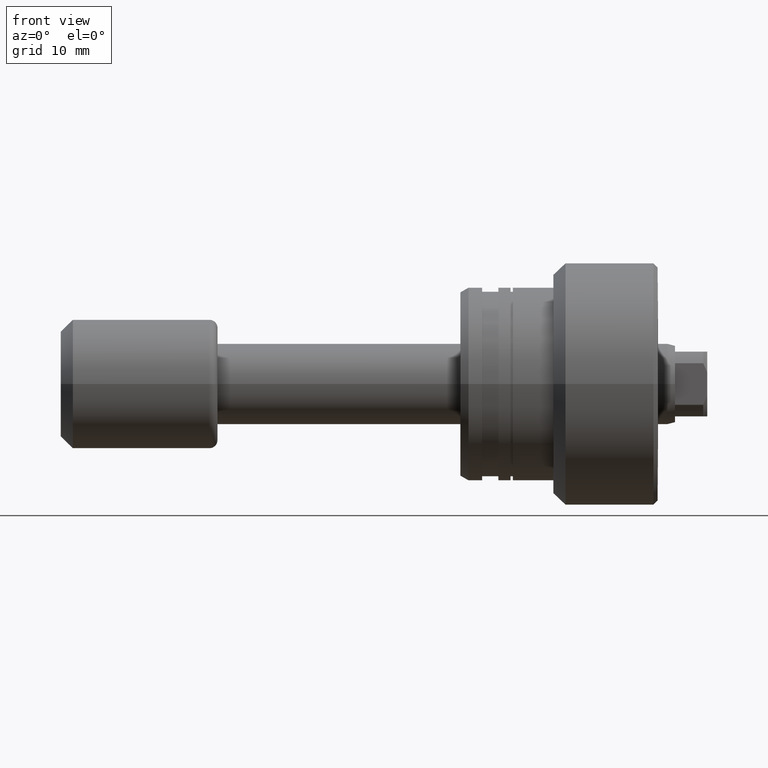
[diagram: clean part render]
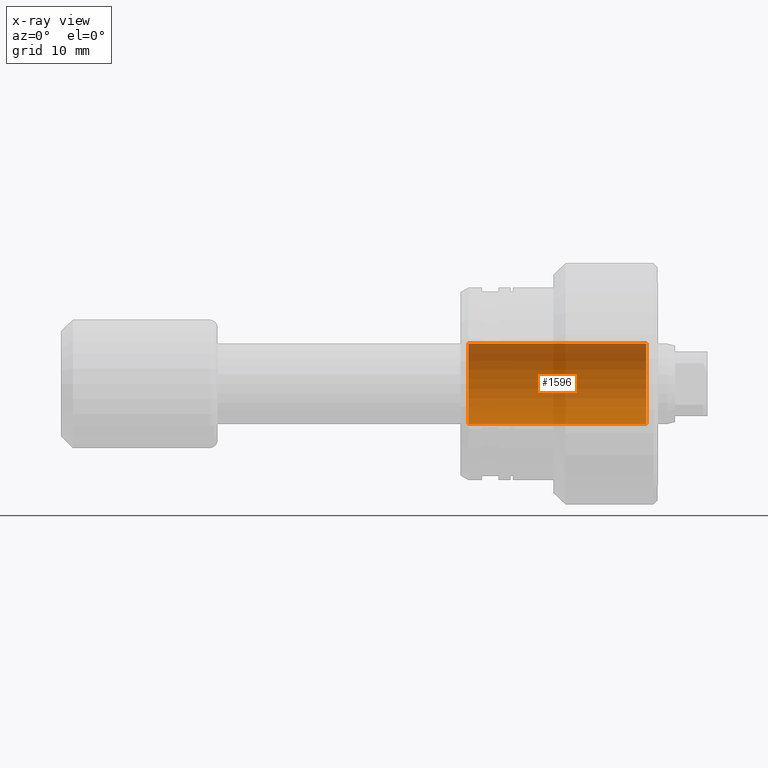
[diagram: x-ray — body ghosted, one internal face saturated and labeled with its STEP entity id]
A machine part, front view, then the same camera in x-ray: the body is ghosted and one INTERNAL B-rep face — a face not visible from any outside direction — is saturated and labeled: STEP entity #1596.
In plain terms, the highlighted cylindrical surface (partial cylindrical patch) has radius 5 mm, axis along (1, 0, 0).
Its self-contained STEP definition (entity closure, byte-faithful):
#7 = AXIS2_PLACEMENT_3D ( 'NONE', #1111, #1497, #1895 ) ;
#77 = VECTOR ( 'NONE', #2099, 1000.000000000000000 ) ;
#87 = CARTESIAN_POINT ( 'NONE',  ( -23.49999999999997868, 6.123233995736766282E-16, 5.000000000000000000 ) ) ;
#162 = VERTEX_POINT ( 'NONE', #1788 ) ;
#204 = DIRECTION ( 'NONE',  ( 0.000000000000000000, 0.000000000000000000, 1.000000000000000000 ) ) ;
#226 = CARTESIAN_POINT ( 'NONE',  ( -1.500000000000000000, 6.123233995736766282E-16, 5.000000000000000000 ) ) ;
#298 = CARTESIAN_POINT ( 'NONE',  ( -1.500000000000000000, 0.000000000000000000, 0.000000000000000000 ) ) ;
#299 = CARTESIAN_POINT ( 'NONE',  ( -38.64213562373095101, 0.000000000000000000, -5.000000000000000000 ) ) ;
#452 = VERTEX_POINT ( 'NONE', #575 ) ;
#522 = AXIS2_PLACEMENT_3D ( 'NONE', #298, #706, #1824 ) ;
#575 = CARTESIAN_POINT ( 'NONE',  ( -1.500000000000000000, 0.000000000000000000, -5.000000000000000000 ) ) ;
#661 = ORIENTED_EDGE ( 'NONE', *, *, #1164, .T. ) ;
#706 = DIRECTION ( 'NONE',  ( 1.000000000000000000, 0.000000000000000000, 0.000000000000000000 ) ) ;
#716 = EDGE_CURVE ( 'NONE', #162, #452, #2147, .T. ) ;
#901 = EDGE_CURVE ( 'NONE', #2292, #976, #2394, .T. ) ;
#976 = VERTEX_POINT ( 'NONE', #226 ) ;
#1000 = AXIS2_PLACEMENT_3D ( 'NONE', #1468, #1130, #204 ) ;
#1111 = CARTESIAN_POINT ( 'NONE',  ( -38.64213562373095101, 0.000000000000000000, 0.000000000000000000 ) ) ;
#1112 = ORIENTED_EDGE ( 'NONE', *, *, #716, .T. ) ;
#1130 = DIRECTION ( 'NONE',  ( -1.000000000000000000, -0.000000000000000000, -0.000000000000000000 ) ) ;
#1164 = EDGE_CURVE ( 'NONE', #2292, #162, #1993, .T. ) ;
#1362 = VECTOR ( 'NONE', #1628, 1000.000000000000000 ) ;
#1468 = CARTESIAN_POINT ( 'NONE',  ( -23.49999999999997868, 0.000000000000000000, 0.000000000000000000 ) ) ;
#1497 = DIRECTION ( 'NONE',  ( 1.000000000000000000, -0.000000000000000000, -0.000000000000000000 ) ) ;
#1507 = FACE_OUTER_BOUND ( 'NONE', #1812, .T. ) ;
#1596 = ADVANCED_FACE ( 'NONE', ( #1507 ), #1712, .F. ) ;
#1628 = DIRECTION ( 'NONE',  ( 1.000000000000000000, -0.000000000000000000, -0.000000000000000000 ) ) ;
#1656 = CARTESIAN_POINT ( 'NONE',  ( -38.64213562373095101, 6.123233995736766282E-16, 5.000000000000000000 ) ) ;
#1712 = CYLINDRICAL_SURFACE ( 'NONE', #7, 5.000000000000000000 ) ;
#1788 = CARTESIAN_POINT ( 'NONE',  ( -23.49999999999997868, 0.000000000000000000, -5.000000000000000000 ) ) ;
#1812 = EDGE_LOOP ( 'NONE', ( #2029, #661, #1112, #1949 ) ) ;
#1824 = DIRECTION ( 'NONE',  ( 0.000000000000000000, 0.000000000000000000, -1.000000000000000000 ) ) ;
#1895 = DIRECTION ( 'NONE',  ( 0.000000000000000000, 0.000000000000000000, -1.000000000000000000 ) ) ;
#1949 = ORIENTED_EDGE ( 'NONE', *, *, #2199, .T. ) ;
#1993 = CIRCLE ( 'NONE', #1000, 5.000000000000000000 ) ;
#2029 = ORIENTED_EDGE ( 'NONE', *, *, #901, .F. ) ;
#2047 = CIRCLE ( 'NONE', #522, 5.000000000000000000 ) ;
#2099 = DIRECTION ( 'NONE',  ( 1.000000000000000000, -0.000000000000000000, -0.000000000000000000 ) ) ;
#2147 = LINE ( 'NONE', #299, #1362 ) ;
#2199 = EDGE_CURVE ( 'NONE', #452, #976, #2047, .T. ) ;
#2292 = VERTEX_POINT ( 'NONE', #87 ) ;
#2394 = LINE ( 'NONE', #1656, #77 ) ;